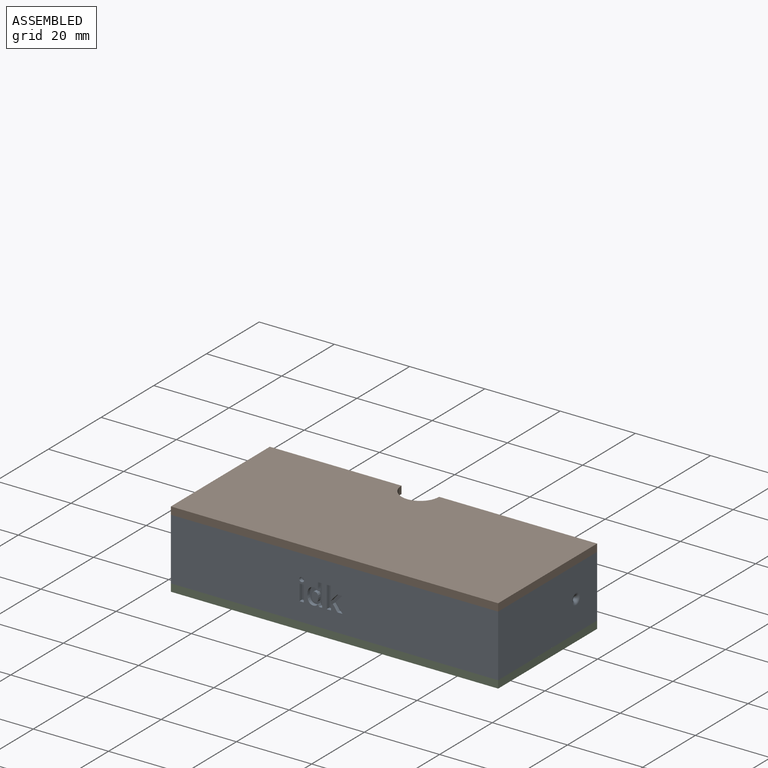
[diagram: assembled view]
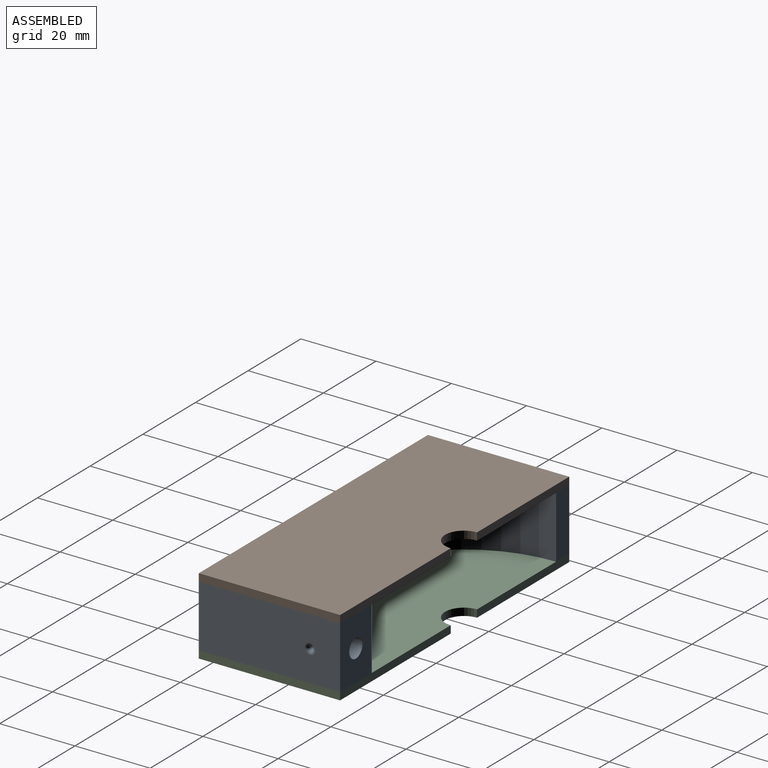
[diagram: assembled view, second angle]
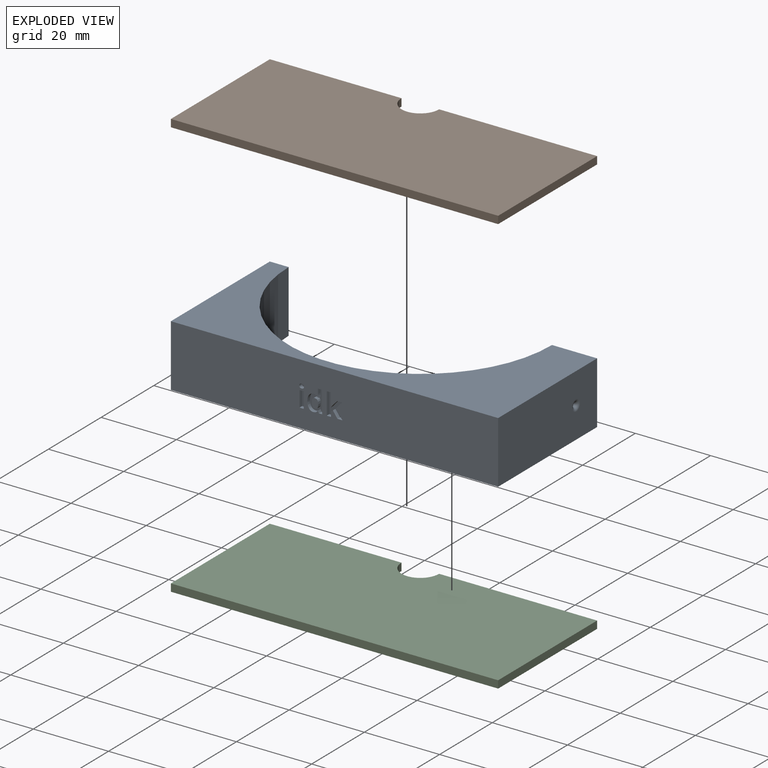
[diagram: exploded view]
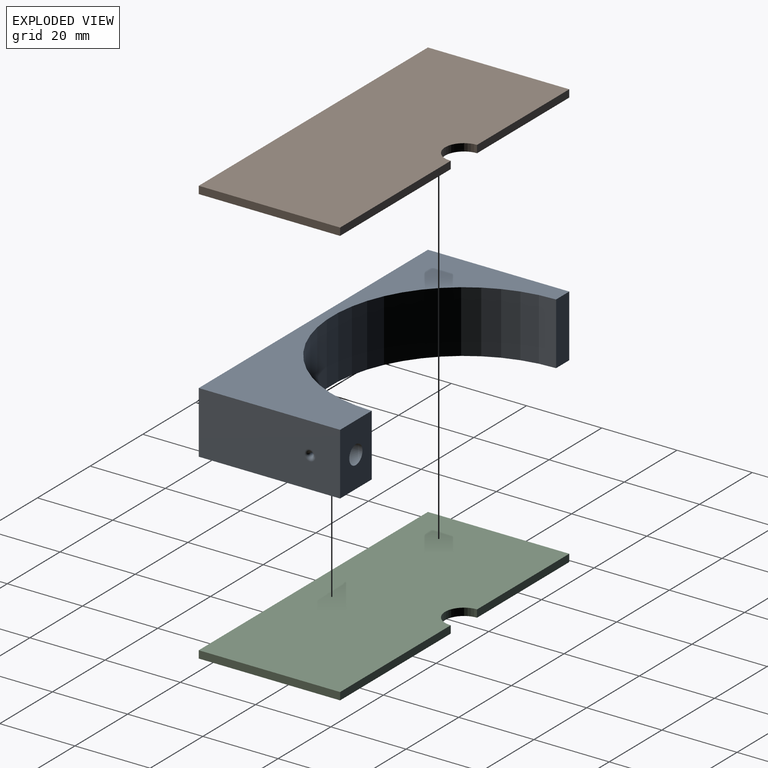
[diagram: exploded view, second angle]
ASSEMBLY  parts=3 mates=2
PART A: 65 faces, bbox 87x37.6x16.5 mm
  f0: plane 87x16.5mm, normal (0,-1,0), area 1399.9mm2, adj f4,f5,f6,f7,f13,f14,f15,f16
  f1: plane 16.5x12mm, normal (0,1,0), area 178.4mm2, adj f2,f5,f6,f7,f8
  f2: cylinder r=35mm len=70mm, axis (0,0,-1), area 1807.2mm2, adj f1,f3,f6,f7,f12
  f3: plane 16.5x5mm, normal (0,1,0), area 82.5mm2, adj f2,f4,f6,f7
  f4: plane 37.57x16.5mm, normal (-1,0,0), area 619.9mm2, adj f0,f3,f6,f7
  f5: plane 37.57x16.5mm, normal (1,0,0), area 612.8mm2, adj f0,f1,f6,f7,f11
  f6: plane 87x37.57mm, normal (0,0,1), area 1344.3mm2, adj f0,f1,f2,f3,f4,f5
  f7: plane 87x37.57mm, normal (0,0,-1), area 1344.3mm2, adj f0,f1,f2,f3,f4,f5
  f8: cylinder r=2.5mm len=6mm, axis (0,1,0), area 94.2mm2, adj f1,f9
  f9: plane 5x5mm, normal (0,1,0), area 19.6mm2, adj f8
  f10: cylinder r=0.5mm len=11.28mm, axis (1,0,0), area 34.3mm2, adj f11,f12
  f11: torus R=1.5mm, axis (1,0,0), area 8.5mm2, adj f5,f10
  f12: bspline ~3x2.92mm, area 8.5mm2, adj f2,f10
  f13: extruded ~1x0.63mm, area 1mm2, adj f0,f14,f17,f18
  f14: extruded ~1x0.63mm, area 1mm2, adj f0,f13,f15,f18
  f15: extruded ~1x0.47mm, area 0.5mm2, adj f0,f14,f16,f18
  f16: extruded ~1x0.42mm, area 0.5mm2, adj f0,f15,f17,f18
  f17: extruded ~1x0.63mm, area 1mm2, adj f0,f13,f16,f18
  f18: plane 1.25x1.13mm, normal (0,-1,0), area 1.2mm2, adj f13,f14,f15,f16,f17
  f19: extruded ~1x0.65mm, area 0.7mm2, adj f20,f41,f42,f64
  f20: extruded ~1x0.62mm, area 0.7mm2, adj f19,f21,f42,f64
  f21: extruded ~1x0.93mm, area 1mm2, adj f20,f22,f42,f64
  f22: extruded ~1x0.95mm, area 1mm2, adj f21,f23,f42,f64
  f23: extruded ~1x0.6mm, area 0.7mm2, adj f22,f24,f42,f64
  f24: extruded ~1x0.68mm, area 0.8mm2, adj f23,f25,f42,f64
  f25: extruded ~1x0.97mm, area 1mm2, adj f24,f26,f42,f64
  f26: plane 1x0.12mm, normal (1,0,0), area 0.1mm2, adj f25,f41,f42,f64
  f27: extruded ~1.17x1mm, area 1.4mm2, adj f0,f28,f40,f42
  f28: extruded ~1.2x1mm, area 1.4mm2, adj f0,f27,f29,f42
  f29: plane 1x0.05mm, normal (0,0,1), area 0mm2, adj f0,f28,f30,f42
  f30: plane 1x0.55mm, normal (0.93,0,0.38), area 0.6mm2, adj f0,f29,f31,f42
  f31: plane 1x0.88mm, normal (0,0,1), area 0.9mm2, adj f0,f30,f32,f42
  f32: plane 5.87x1mm, normal (-1,0,0), area 5.9mm2, adj f0,f31,f33,f42
  f33: plane 1.15x1mm, normal (0,0,-1), area 1.2mm2, adj f0,f32,f34,f42
  f34: plane 1.35x1mm, normal (1,0,0), area 1.4mm2, adj f0,f33,f35,f42
  f35: extruded ~1x0.84mm, area 0.8mm2, adj f0,f34,f36,f42
  f36: plane 1x0.04mm, normal (0,0,-1), area 0mm2, adj f0,f35,f37,f42
  f37: extruded ~1.22x1mm, area 1.4mm2, adj f0,f36,f38,f42
  f38: extruded ~1.19x1mm, area 1.4mm2, adj f0,f37,f39,f42
  f39: extruded ~1.62x1mm, area 1.7mm2, adj f0,f38,f40,f42
  f40: extruded ~1.6x1mm, area 1.7mm2, adj f0,f27,f39,f42
  f41: extruded ~1x0.87mm, area 0.9mm2, adj f19,f26,f42,f64
  f42: plane 5.95x3.94mm, normal (0,-1,0), area 13.6mm2, adj f19,f20,f21,f22,f23,f24,f25,f26
  f43: plane 1x0.64mm, normal (0.79,0,-0.62), area 0.8mm2, adj f0,f44,f57,f58
  f44: plane 1x0.02mm, normal (0,0,-1), area 0mm2, adj f0,f43,f45,f58
  f45: plane 1x0.96mm, normal (-1,0,0.06), area 1mm2, adj f0,f44,f46,f58
  f46: plane 2.62x1mm, normal (-1,0,0), area 2.6mm2, adj f0,f45,f47,f58
  f47: plane 1.15x1mm, normal (0,0,-1), area 1.2mm2, adj f0,f46,f48,f58
  f48: plane 5.87x1mm, normal (1,0,0), area 5.9mm2, adj f0,f47,f49,f58
  f49: plane 1.15x1mm, normal (0,0,1), area 1.2mm2, adj f0,f48,f50,f58
  f50: plane 1.31x1mm, normal (-1,0,0), area 1.3mm2, adj f0,f49,f51,f58
  f51: plane 1x0.5mm, normal (-0.62,0,0.78), area 0.6mm2, adj f0,f50,f52,f58
  f52: plane 1.71x1.21mm, normal (0.82,0,0.58), area 2.1mm2, adj f0,f51,f53,f58
  f53: plane 1.33x1mm, normal (0,0,1), area 1.3mm2, adj f0,f52,f54,f58
  f54: plane 2.39x1.78mm, normal (-0.8,0,-0.6), area 3mm2, adj f0,f53,f55,f58
  f55: plane 1.83x1.67mm, normal (-0.74,0,0.68), area 2.5mm2, adj f0,f54,f56,f58
  f56: plane 1.3x1mm, normal (0,0,-1), area 1.3mm2, adj f0,f55,f57,f58
  f57: plane 1.28x1.18mm, normal (0.74,0,-0.68), area 1.7mm2, adj f0,f43,f56,f58
  f58: plane 5.87x4.19mm, normal (0,-1,0), area 12.4mm2, adj f43,f44,f45,f46,f47,f48,f49,f50
  f59: plane 1.15x1mm, normal (0,0,1), area 1.2mm2, adj f0,f60,f62,f63
  f60: plane 4.22x1mm, normal (-1,0,0), area 4.2mm2, adj f0,f59,f61,f63
  f61: plane 1.15x1mm, normal (0,0,-1), area 1.2mm2, adj f0,f60,f62,f63
  f62: plane 4.22x1mm, normal (1,0,0), area 4.2mm2, adj f0,f59,f61,f63
  f63: plane 4.22x1.15mm, normal (0,-1,0), area 4.9mm2, adj f59,f60,f61,f62
  f64: plane 2.52x1.7mm, normal (0,-1,0), area 3.6mm2, adj f19,f20,f21,f22,f23,f24,f25,f26
PART B: 8 faces, bbox 87x37.6x2 mm
  f0: plane 42x2mm, normal (0,1,0), area 84mm2, adj f1,f5,f6,f7
  f1: cylinder r=5mm len=10mm, axis (0,0,-1), area 31.4mm2, adj f0,f2,f6,f7
  f2: plane 35x2mm, normal (0,1,0), area 70mm2, adj f1,f3,f6,f7
  f3: plane 37.57x2mm, normal (-1,0,0), area 75.1mm2, adj f2,f4,f6,f7
  f4: plane 87x2mm, normal (0,-1,0), area 174mm2, adj f3,f5,f6,f7
  f5: plane 37.57x2mm, normal (1,0,0), area 75.1mm2, adj f0,f4,f6,f7
  f6: plane 87x37.57mm, normal (0,0,1), area 3229.3mm2, adj f0,f1,f2,f3,f4,f5
  f7: plane 87x37.57mm, normal (0,0,-1), area 3229.3mm2, adj f0,f1,f2,f3,f4,f5
PART C: same geometry as B
PLACE A t=(-8.25,21.61,-41.92)mm
PLACE B t=(-8.25,21.61,-25.42)mm fixed
PLACE C t=(-8.25,21.61,-43.92)mm
MATE fastened B.f7 <-> A.f6  axis (0,0,-1) through (38.75,21.61,-25.42)mm
MATE fastened A.f7 <-> C.f6  axis (0,0,-1) through (38.75,21.61,-41.92)mm
